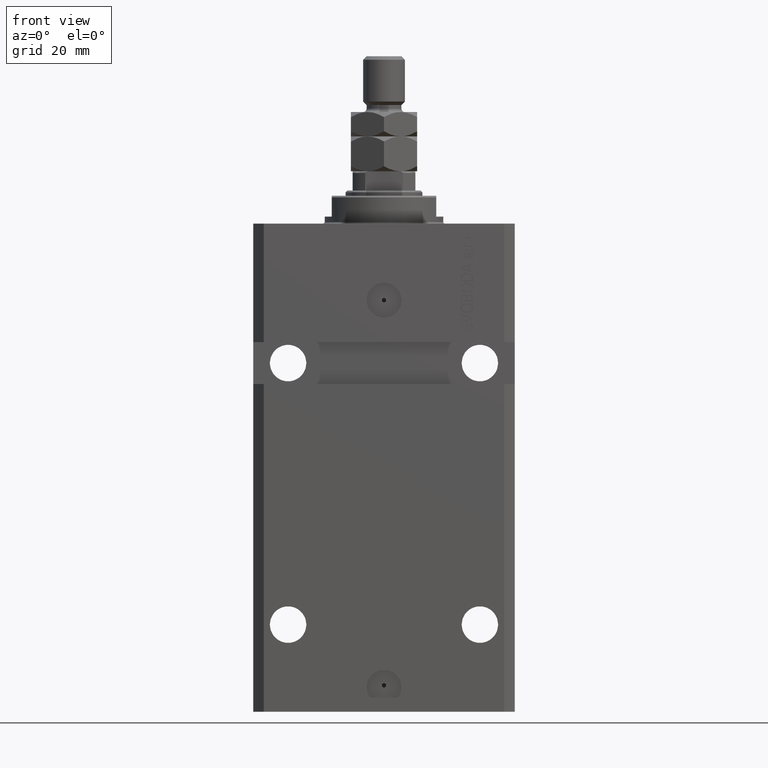
[diagram: clean part render]
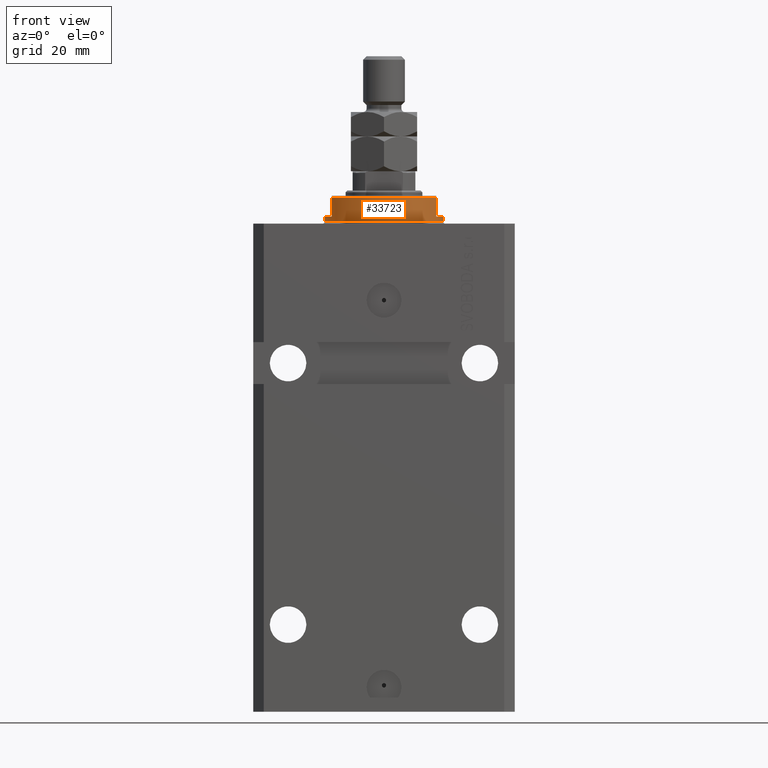
[diagram: same view with one face highlighted and labeled with its STEP entity id]
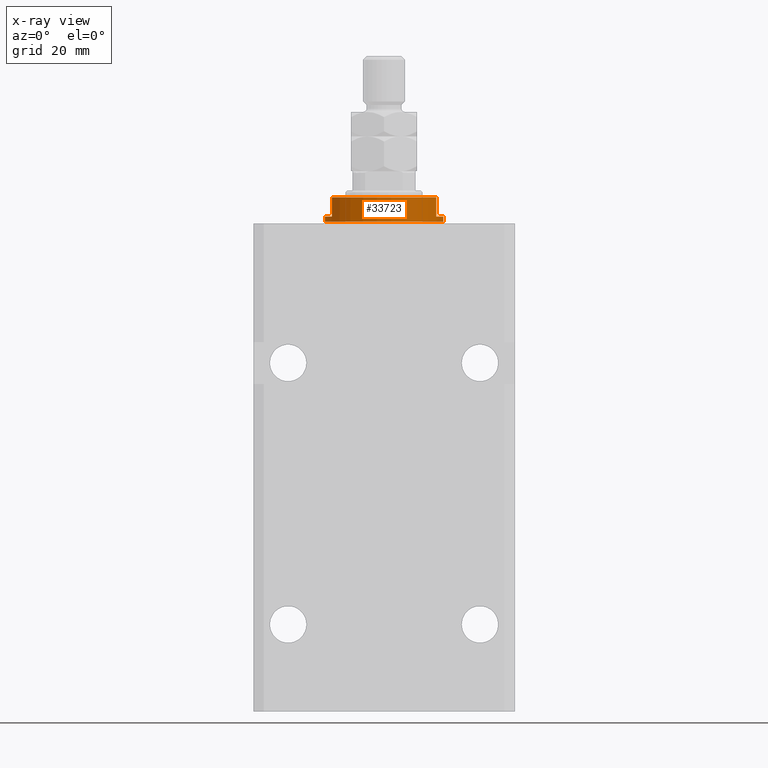
[diagram: x-ray of the same camera — body ghosted, the highlighted face saturated]
A machine part, front view. The second image highlights one B-rep face of the part: STEP entity #33723.
The next image is the same camera in x-ray: the body ghosted, the highlighted face saturated — about 0% of this face is hidden behind the body in this view.
In plain terms, the highlighted cylindrical surface (partial cylindrical patch) has radius 17 mm, axis along (0, 0, -1).
Its self-contained STEP definition (entity closure, byte-faithful):
#777 = ORIENTED_EDGE ( 'NONE', *, *, #44675, .F. ) ;
#1012 = DIRECTION ( 'NONE',  ( -0.000000000000000000, -0.000000000000000000, 1.000000000000000000 ) ) ;
#3040 = VERTEX_POINT ( 'NONE', #10355 ) ;
#3180 = EDGE_CURVE ( 'NONE', #3040, #22356, #10303, .T. ) ;
#3536 = CARTESIAN_POINT ( 'NONE',  ( -15.00000000000000000, -8.000000000000001776, -8.000000000000000000 ) ) ;
#3641 = CARTESIAN_POINT ( 'NONE',  ( -17.00000000000000000, 2.081899558550500280E-15, -0.5000000000000004441 ) ) ;
#3698 = CARTESIAN_POINT ( 'NONE',  ( -15.00000000000000000, -8.000000000000001776, -7.500000000000007105 ) ) ;
#5247 = VECTOR ( 'NONE', #31068, 1000.000000000000000 ) ;
#5375 = CARTESIAN_POINT ( 'NONE',  ( 0.000000000000000000, 0.000000000000000000, -8.000000000000000000 ) ) ;
#5437 = CIRCLE ( 'NONE', #42739, 17.00000000000000000 ) ;
#5706 = LINE ( 'NONE', #5937, #23175 ) ;
#5937 = CARTESIAN_POINT ( 'NONE',  ( 17.00000000000000000, 0.000000000000000000, -8.000000000000000000 ) ) ;
#6906 = CARTESIAN_POINT ( 'NONE',  ( 17.00000000000000000, 0.000000000000000000, -2.000000000000000000 ) ) ;
#6940 = VECTOR ( 'NONE', #1012, 1000.000000000000000 ) ;
#6973 = CIRCLE ( 'NONE', #35298, 17.00000000000000000 ) ;
#7038 = DIRECTION ( 'NONE',  ( 0.000000000000000000, 0.000000000000000000, -1.000000000000000000 ) ) ;
#7604 = DIRECTION ( 'NONE',  ( -0.000000000000000000, -0.000000000000000000, -1.000000000000000000 ) ) ;
#7858 = AXIS2_PLACEMENT_3D ( 'NONE', #43237, #11237, #14739 ) ;
#7861 = VERTEX_POINT ( 'NONE', #6906 ) ;
#8899 = VERTEX_POINT ( 'NONE', #3641 ) ;
#9139 = ORIENTED_EDGE ( 'NONE', *, *, #25339, .F. ) ;
#9360 = CIRCLE ( 'NONE', #7858, 17.00000000000000000 ) ;
#10303 = LINE ( 'NONE', #3536, #39084 ) ;
#10355 = CARTESIAN_POINT ( 'NONE',  ( -14.99999999999999645, -8.000000000000003553, -2.000000000000000000 ) ) ;
#10641 = CARTESIAN_POINT ( 'NONE',  ( 0.000000000000000000, 0.000000000000000000, -0.5000000000000004441 ) ) ;
#10731 = ORIENTED_EDGE ( 'NONE', *, *, #27480, .T. ) ;
#11051 = CARTESIAN_POINT ( 'NONE',  ( 0.000000000000000000, 0.000000000000000000, -7.500000000000007105 ) ) ;
#11237 = DIRECTION ( 'NONE',  ( 0.000000000000000000, 0.000000000000000000, -1.000000000000000000 ) ) ;
#11980 = ORIENTED_EDGE ( 'NONE', *, *, #3180, .T. ) ;
#12020 = CARTESIAN_POINT ( 'NONE',  ( 15.00000000000000000, -8.000000000000001776, -7.500000000000007105 ) ) ;
#12024 = CARTESIAN_POINT ( 'NONE',  ( 17.00000000000000000, 0.000000000000000000, -0.5000000000000004441 ) ) ;
#13074 = LINE ( 'NONE', #17048, #5247 ) ;
#14739 = DIRECTION ( 'NONE',  ( -1.000000000000000000, 0.000000000000000000, 0.000000000000000000 ) ) ;
#17048 = CARTESIAN_POINT ( 'NONE',  ( 15.00000000000000000, -8.000000000000001776, -8.000000000000000000 ) ) ;
#17273 = ORIENTED_EDGE ( 'NONE', *, *, #35452, .F. ) ;
#17716 = DIRECTION ( 'NONE',  ( -1.000000000000000000, 0.000000000000000000, 0.000000000000000000 ) ) ;
#19405 = VERTEX_POINT ( 'NONE', #35744 ) ;
#19686 = ORIENTED_EDGE ( 'NONE', *, *, #36775, .F. ) ;
#22356 = VERTEX_POINT ( 'NONE', #3698 ) ;
#23089 = CYLINDRICAL_SURFACE ( 'NONE', #30696, 17.00000000000000000 ) ;
#23175 = VECTOR ( 'NONE', #26458, 1000.000000000000000 ) ;
#24376 = ORIENTED_EDGE ( 'NONE', *, *, #39659, .T. ) ;
#25283 = DIRECTION ( 'NONE',  ( 0.000000000000000000, 0.000000000000000000, 1.000000000000000000 ) ) ;
#25339 = EDGE_CURVE ( 'NONE', #19405, #43372, #13074, .T. ) ;
#25619 = CARTESIAN_POINT ( 'NONE',  ( -17.00000000000000000, 2.081899558550500280E-15, -2.000000000000000000 ) ) ;
#26458 = DIRECTION ( 'NONE',  ( -0.000000000000000000, -0.000000000000000000, 1.000000000000000000 ) ) ;
#27480 = EDGE_CURVE ( 'NONE', #7861, #44160, #5706, .T. ) ;
#28538 = AXIS2_PLACEMENT_3D ( 'NONE', #11051, #25283, #31619 ) ;
#28910 = DIRECTION ( 'NONE',  ( 0.000000000000000000, 0.000000000000000000, -1.000000000000000000 ) ) ;
#29049 = ORIENTED_EDGE ( 'NONE', *, *, #35131, .T. ) ;
#30350 = DIRECTION ( 'NONE',  ( 1.000000000000000000, 0.000000000000000000, 0.000000000000000000 ) ) ;
#30696 = AXIS2_PLACEMENT_3D ( 'NONE', #5375, #33861, #30350 ) ;
#31068 = DIRECTION ( 'NONE',  ( 0.000000000000000000, 0.000000000000000000, -1.000000000000000000 ) ) ;
#31619 = DIRECTION ( 'NONE',  ( -1.000000000000000000, 0.000000000000000000, 0.000000000000000000 ) ) ;
#32982 = CARTESIAN_POINT ( 'NONE',  ( -17.00000000000000000, 2.081899558550500280E-15, -8.000000000000000000 ) ) ;
#33221 = LINE ( 'NONE', #32982, #6940 ) ;
#33723 = ADVANCED_FACE ( 'NONE', ( #40883 ), #23089, .T. ) ;
#33861 = DIRECTION ( 'NONE',  ( -0.000000000000000000, -0.000000000000000000, 1.000000000000000000 ) ) ;
#35131 = EDGE_CURVE ( 'NONE', #44160, #8899, #5437, .T. ) ;
#35298 = AXIS2_PLACEMENT_3D ( 'NONE', #45998, #28910, #17716 ) ;
#35452 = EDGE_CURVE ( 'NONE', #36008, #8899, #33221, .T. ) ;
#35744 = CARTESIAN_POINT ( 'NONE',  ( 14.99999999999999645, -8.000000000000003553, -2.000000000000000000 ) ) ;
#36008 = VERTEX_POINT ( 'NONE', #25619 ) ;
#36775 = EDGE_CURVE ( 'NONE', #3040, #36008, #6973, .T. ) ;
#39002 = CIRCLE ( 'NONE', #28538, 17.00000000000000000 ) ;
#39084 = VECTOR ( 'NONE', #7038, 1000.000000000000000 ) ;
#39659 = EDGE_CURVE ( 'NONE', #22356, #43372, #39002, .T. ) ;
#40883 = FACE_OUTER_BOUND ( 'NONE', #41477, .T. ) ;
#41477 = EDGE_LOOP ( 'NONE', ( #17273, #19686, #11980, #24376, #9139, #777, #10731, #29049 ) ) ;
#42739 = AXIS2_PLACEMENT_3D ( 'NONE', #10641, #7604, #42874 ) ;
#42874 = DIRECTION ( 'NONE',  ( 1.000000000000000000, 0.000000000000000000, 0.000000000000000000 ) ) ;
#43237 = CARTESIAN_POINT ( 'NONE',  ( 0.000000000000000000, 0.000000000000000000, -2.000000000000000000 ) ) ;
#43372 = VERTEX_POINT ( 'NONE', #12020 ) ;
#44160 = VERTEX_POINT ( 'NONE', #12024 ) ;
#44675 = EDGE_CURVE ( 'NONE', #7861, #19405, #9360, .T. ) ;
#45998 = CARTESIAN_POINT ( 'NONE',  ( 0.000000000000000000, 0.000000000000000000, -2.000000000000000000 ) ) ;